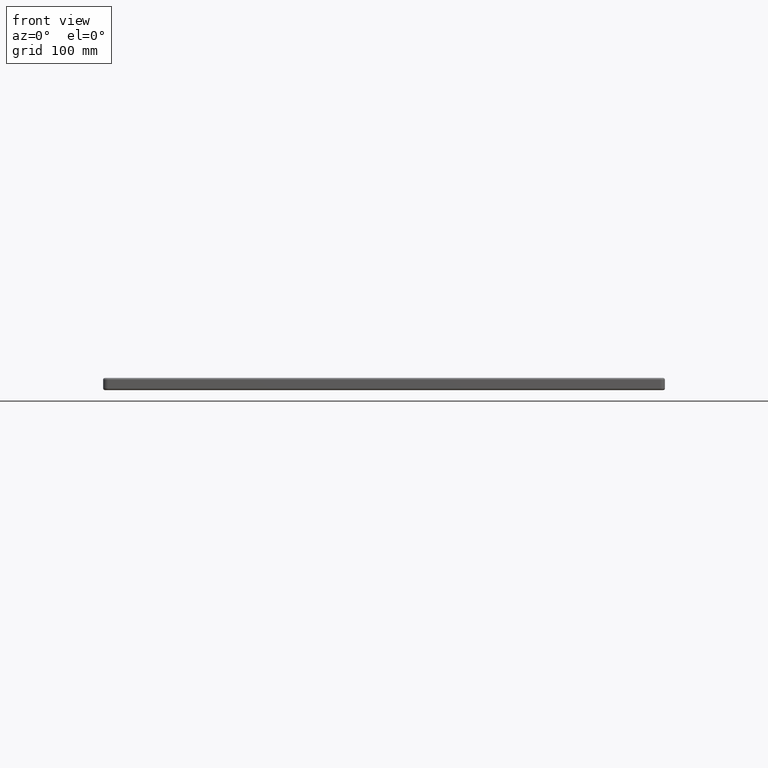
[diagram: clean part render]
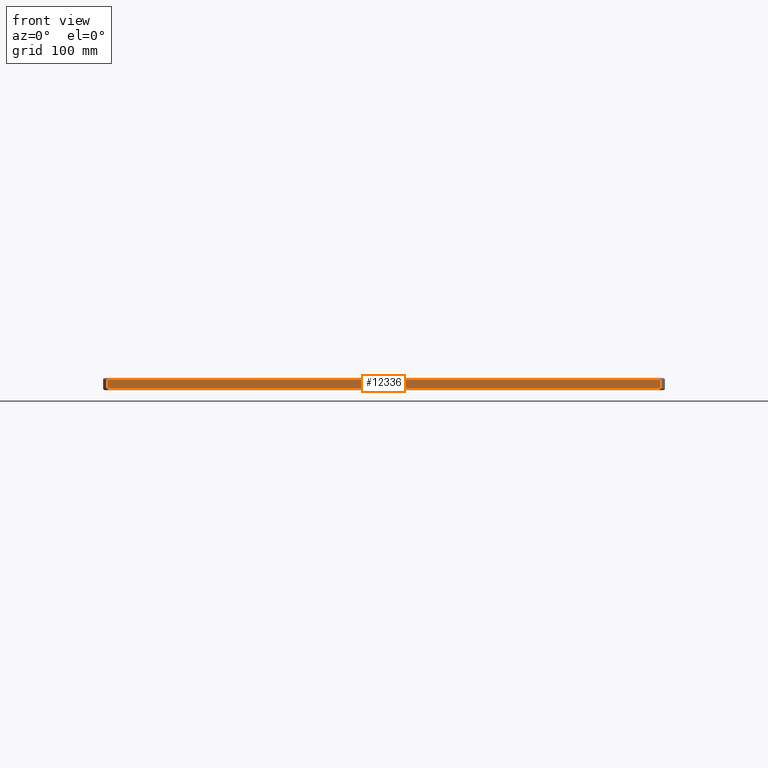
[diagram: same view with one face highlighted and labeled with its STEP entity id]
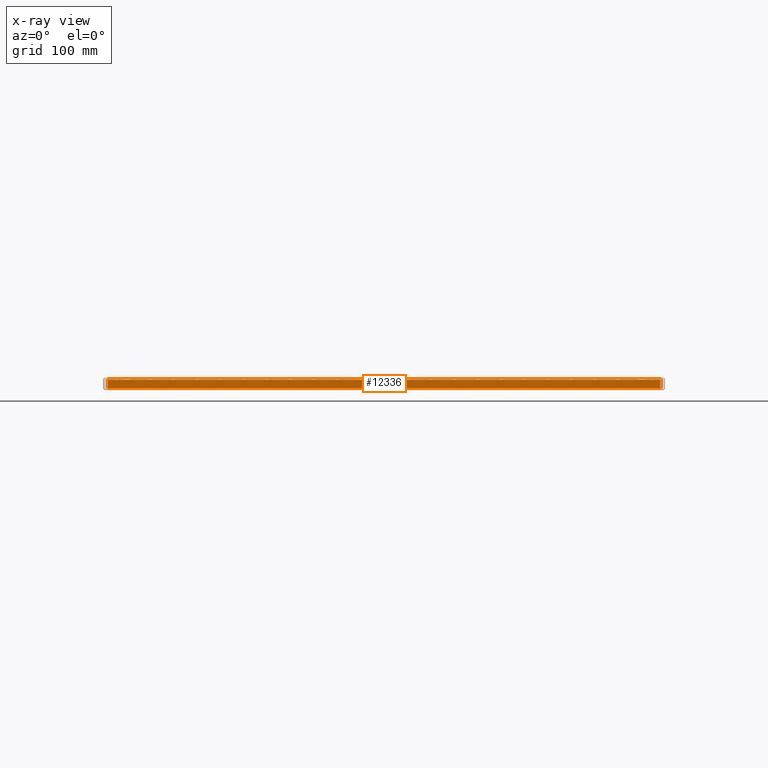
[diagram: x-ray of the same camera — body ghosted, the highlighted face saturated]
A machine part, front view. The second image highlights one B-rep face of the part: STEP entity #12336.
The next image is the same camera in x-ray: the body ghosted, the highlighted face saturated — about 0% of this face is hidden behind the body in this view.
In plain terms, the highlighted planar face has unit normal (0, -1, 0).
Its self-contained STEP definition (entity closure, byte-faithful):
#53 = ORIENTED_EDGE ( 'NONE', *, *, #33707, .T. ) ;
#691 = CARTESIAN_POINT ( 'NONE',  ( 0.0000000000000000000, 0.0000000000000000000, -11.00000000000000000 ) ) ;
#1353 = FACE_OUTER_BOUND ( 'NONE', #9932, .T. ) ;
#1471 = DIRECTION ( 'NONE',  ( 0.0000000000000000000, -0.0000000000000000000, -1.000000000000000000 ) ) ;
#1579 = DIRECTION ( 'NONE',  ( 0.0000000000000000000, -1.000000000000000000, 0.0000000000000000000 ) ) ;
#1611 = DIRECTION ( 'NONE',  ( -1.000000000000000000, -0.0000000000000000000, 0.0000000000000000000 ) ) ;
#3357 = VERTEX_POINT ( 'NONE', #14449 ) ;
#4910 = EDGE_CURVE ( 'NONE', #7586, #20185, #32454, .T. ) ;
#5814 = LINE ( 'NONE', #30786, #15667 ) ;
#6894 = LINE ( 'NONE', #25727, #28137 ) ;
#7586 = VERTEX_POINT ( 'NONE', #7614 ) ;
#7614 = CARTESIAN_POINT ( 'NONE',  ( 4.999999999999999100, 0.0000000000000000000, -2.000000000000000000 ) ) ;
#7780 = EDGE_CURVE ( 'NONE', #20185, #3357, #33380, .T. ) ;
#8145 = ORIENTED_EDGE ( 'NONE', *, *, #18083, .T. ) ;
#9585 = DIRECTION ( 'NONE',  ( -0.0000000000000000000, -0.0000000000000000000, -1.000000000000000000 ) ) ;
#9928 = VECTOR ( 'NONE', #9585, 1000.000000000000000 ) ;
#9932 = EDGE_LOOP ( 'NONE', ( #29193, #30954, #8145, #53 ) ) ;
#10350 = DIRECTION ( 'NONE',  ( -0.0000000000000000000, 0.0000000000000000000, 1.000000000000000000 ) ) ;
#11639 = AXIS2_PLACEMENT_3D ( 'NONE', #27785, #1579, #1471 ) ;
#12336 = ADVANCED_FACE ( 'NONE', ( #1353 ), #32978, .T. ) ;
#14015 = CARTESIAN_POINT ( 'NONE',  ( 4.999999999999999100, 0.0000000000000000000, -11.00000000000000000 ) ) ;
#14449 = CARTESIAN_POINT ( 'NONE',  ( 594.9999999999998900, 0.0000000000000000000, -11.00000000000000000 ) ) ;
#14754 = CARTESIAN_POINT ( 'NONE',  ( 4.999999999999999100, 0.0000000000000000000, -13.00000000000000000 ) ) ;
#15667 = VECTOR ( 'NONE', #1611, 1000.000000000000000 ) ;
#18083 = EDGE_CURVE ( 'NONE', #3357, #33607, #6894, .T. ) ;
#20185 = VERTEX_POINT ( 'NONE', #14015 ) ;
#20261 = VECTOR ( 'NONE', #24493, 1000.000000000000000 ) ;
#24493 = DIRECTION ( 'NONE',  ( 1.000000000000000000, 0.0000000000000000000, 0.0000000000000000000 ) ) ;
#25727 = CARTESIAN_POINT ( 'NONE',  ( 594.9999999999998900, 0.0000000000000000000, -13.00000000000000000 ) ) ;
#27466 = CARTESIAN_POINT ( 'NONE',  ( 594.9999999999998900, 0.0000000000000000000, -2.000000000000000000 ) ) ;
#27785 = CARTESIAN_POINT ( 'NONE',  ( 0.0000000000000000000, 0.0000000000000000000, -13.00000000000000000 ) ) ;
#28137 = VECTOR ( 'NONE', #10350, 1000.000000000000000 ) ;
#29193 = ORIENTED_EDGE ( 'NONE', *, *, #4910, .T. ) ;
#30786 = CARTESIAN_POINT ( 'NONE',  ( 4.999999999999999100, 0.0000000000000000000, -2.000000000000000000 ) ) ;
#30954 = ORIENTED_EDGE ( 'NONE', *, *, #7780, .T. ) ;
#32454 = LINE ( 'NONE', #14754, #9928 ) ;
#32978 = PLANE ( 'NONE',  #11639 ) ;
#33380 = LINE ( 'NONE', #691, #20261 ) ;
#33607 = VERTEX_POINT ( 'NONE', #27466 ) ;
#33707 = EDGE_CURVE ( 'NONE', #33607, #7586, #5814, .T. ) ;